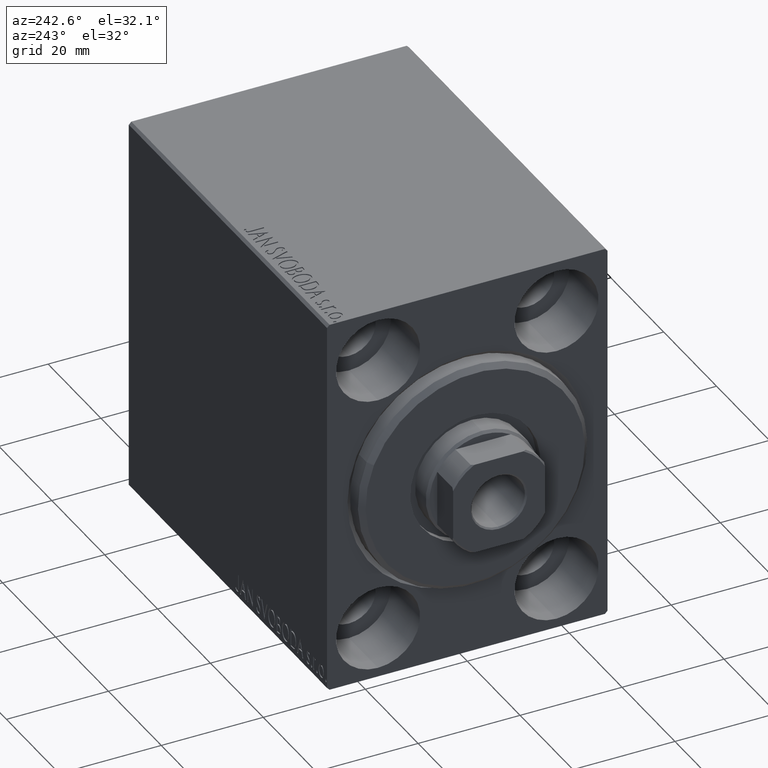
[diagram: clean part render]
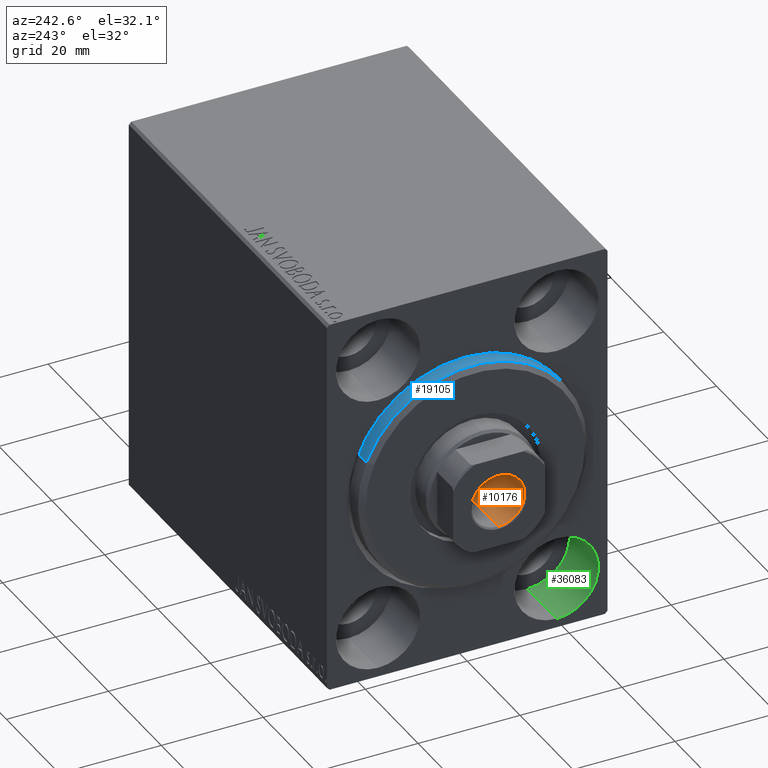
[diagram: same view with three faces highlighted in distinct colors, each labeled with its STEP entity id]
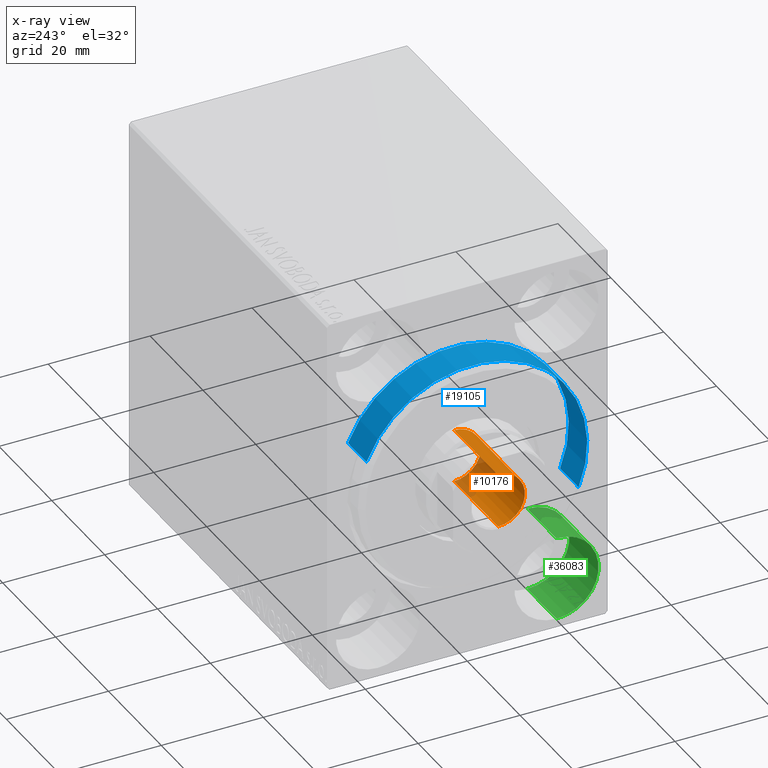
[diagram: x-ray of the same camera — body ghosted, the three highlighted faces saturated]
A machine part, auxiliary view with three faces highlighted in distinct colors.
The next image is the same camera in x-ray (body ghosted, the three faces saturated) — at least one of them is partly hidden behind the body in this view.
Their STEP definitions:

[orange] entity #10176 — the highlighted cylindrical surface (edge-blend (fillet) strip) has radius 5.25 mm, axis along (-1, 0, 0).
#694 = CIRCLE ( 'NONE', #25332, 5.249999999999996447 ) ;
#3334 = DIRECTION ( 'NONE',  ( 1.000000000000000000, 0.000000000000000000, 0.000000000000000000 ) ) ;
#4100 = EDGE_CURVE ( 'NONE', #34859, #17627, #36135, .T. ) ;
#4533 = FACE_OUTER_BOUND ( 'NONE', #13986, .T. ) ;
#5884 = AXIS2_PLACEMENT_3D ( 'NONE', #6429, #36396, #3334 ) ;
#6429 = CARTESIAN_POINT ( 'NONE',  ( 0.000000000000000000, 0.000000000000000000, 60.00000000000001421 ) ) ;
#7017 = CARTESIAN_POINT ( 'NONE',  ( 5.249999999999996447, 0.000000000000000000, 77.00000000000001421 ) ) ;
#8466 = ORIENTED_EDGE ( 'NONE', *, *, #4100, .F. ) ;
#9683 = LINE ( 'NONE', #7017, #30800 ) ;
#10176 = ADVANCED_FACE ( 'NONE', ( #4533 ), #20407, .F. ) ;
#13691 = CARTESIAN_POINT ( 'NONE',  ( -5.249999999999996447, 6.429395695523600208E-16, 76.70000000000000284 ) ) ;
#13807 = DIRECTION ( 'NONE',  ( -0.000000000000000000, -0.000000000000000000, 1.000000000000000000 ) ) ;
#13986 = EDGE_LOOP ( 'NONE', ( #8466, #37673, #31883, #18434 ) ) ;
#14102 = CARTESIAN_POINT ( 'NONE',  ( 0.000000000000000000, 0.000000000000000000, 76.70000000000000284 ) ) ;
#15848 = AXIS2_PLACEMENT_3D ( 'NONE', #17107, #13807, #27254 ) ;
#15951 = CARTESIAN_POINT ( 'NONE',  ( -5.249999999999996447, 6.429395695523600208E-16, 77.00000000000001421 ) ) ;
#17107 = CARTESIAN_POINT ( 'NONE',  ( 0.000000000000000000, 0.000000000000000000, 77.00000000000001421 ) ) ;
#17434 = EDGE_CURVE ( 'NONE', #17627, #22928, #9683, .T. ) ;
#17627 = VERTEX_POINT ( 'NONE', #38929 ) ;
#18434 = ORIENTED_EDGE ( 'NONE', *, *, #17434, .F. ) ;
#19678 = DIRECTION ( 'NONE',  ( 0.000000000000000000, 0.000000000000000000, 1.000000000000000000 ) ) ;
#20407 = CYLINDRICAL_SURFACE ( 'NONE', #15848, 5.249999999999996447 ) ;
#22928 = VERTEX_POINT ( 'NONE', #27607 ) ;
#23451 = EDGE_CURVE ( 'NONE', #34859, #23878, #30062, .T. ) ;
#23878 = VERTEX_POINT ( 'NONE', #13691 ) ;
#25332 = AXIS2_PLACEMENT_3D ( 'NONE', #14102, #19678, #40976 ) ;
#27254 = DIRECTION ( 'NONE',  ( 1.000000000000000000, 0.000000000000000000, 0.000000000000000000 ) ) ;
#27607 = CARTESIAN_POINT ( 'NONE',  ( 5.249999999999996447, 0.000000000000000000, 76.70000000000000284 ) ) ;
#29690 = EDGE_CURVE ( 'NONE', #23878, #22928, #694, .T. ) ;
#30062 = LINE ( 'NONE', #15951, #32234 ) ;
#30800 = VECTOR ( 'NONE', #36557, 1000.000000000000000 ) ;
#31883 = ORIENTED_EDGE ( 'NONE', *, *, #29690, .T. ) ;
#32234 = VECTOR ( 'NONE', #36440, 1000.000000000000000 ) ;
#32910 = CARTESIAN_POINT ( 'NONE',  ( -5.249999999999995559, 6.429395695523600208E-16, 60.00000000000001421 ) ) ;
#34859 = VERTEX_POINT ( 'NONE', #32910 ) ;
#36135 = CIRCLE ( 'NONE', #5884, 5.249999999999995559 ) ;
#36396 = DIRECTION ( 'NONE',  ( -0.000000000000000000, -0.000000000000000000, 1.000000000000000000 ) ) ;
#36440 = DIRECTION ( 'NONE',  ( -0.000000000000000000, -0.000000000000000000, 1.000000000000000000 ) ) ;
#36557 = DIRECTION ( 'NONE',  ( -0.000000000000000000, -0.000000000000000000, 1.000000000000000000 ) ) ;
#37673 = ORIENTED_EDGE ( 'NONE', *, *, #23451, .T. ) ;
#38929 = CARTESIAN_POINT ( 'NONE',  ( 5.249999999999995559, 0.000000000000000000, 60.00000000000001421 ) ) ;
#40976 = DIRECTION ( 'NONE',  ( 1.000000000000000000, 0.000000000000000000, 0.000000000000000000 ) ) ;

[blue] entity #19105 — the highlighted cylindrical surface (partial cylindrical patch) has radius 22.5 mm, axis along (1, 0, 0).
#1258 = DIRECTION ( 'NONE',  ( -1.000000000000000000, -0.000000000000000000, -0.000000000000000000 ) ) ;
#2498 = VERTEX_POINT ( 'NONE', #31910 ) ;
#3276 = DIRECTION ( 'NONE',  ( 0.000000000000000000, 0.000000000000000000, 1.000000000000000000 ) ) ;
#3499 = EDGE_CURVE ( 'NONE', #2498, #14376, #12198, .T. ) ;
#3638 = DIRECTION ( 'NONE',  ( -1.000000000000000000, -0.000000000000000000, -0.000000000000000000 ) ) ;
#5679 = VECTOR ( 'NONE', #3638, 1000.000000000000000 ) ;
#6952 = CARTESIAN_POINT ( 'NONE',  ( 3.000000000000000000, 2.755455298081545172E-15, -22.50000000000000355 ) ) ;
#7464 = LINE ( 'NONE', #31683, #42036 ) ;
#9438 = AXIS2_PLACEMENT_3D ( 'NONE', #34134, #40529, #17173 ) ;
#10260 = LINE ( 'NONE', #6952, #5679 ) ;
#11055 = VERTEX_POINT ( 'NONE', #29197 ) ;
#12198 = CIRCLE ( 'NONE', #37522, 22.50000000000000355 ) ;
#14376 = VERTEX_POINT ( 'NONE', #21541 ) ;
#17173 = DIRECTION ( 'NONE',  ( 0.000000000000000000, 0.000000000000000000, -1.000000000000000000 ) ) ;
#17537 = EDGE_CURVE ( 'NONE', #37765, #14376, #7464, .T. ) ;
#17767 = FACE_OUTER_BOUND ( 'NONE', #34479, .T. ) ;
#19105 = ADVANCED_FACE ( 'NONE', ( #17767 ), #28558, .T. ) ;
#21509 = DIRECTION ( 'NONE',  ( 0.000000000000000000, 0.000000000000000000, 1.000000000000000000 ) ) ;
#21541 = CARTESIAN_POINT ( 'NONE',  ( -5.000000000000000000, 0.000000000000000000, 22.50000000000000355 ) ) ;
#23981 = DIRECTION ( 'NONE',  ( -1.000000000000000000, 0.000000000000000000, 0.000000000000000000 ) ) ;
#24903 = CIRCLE ( 'NONE', #9438, 22.50000000000000355 ) ;
#28558 = CYLINDRICAL_SURFACE ( 'NONE', #42786, 22.50000000000000355 ) ;
#29197 = CARTESIAN_POINT ( 'NONE',  ( 1.999999999999999112, 2.755455298081545172E-15, -22.50000000000000355 ) ) ;
#30969 = EDGE_CURVE ( 'NONE', #11055, #2498, #10260, .T. ) ;
#31217 = DIRECTION ( 'NONE',  ( -1.000000000000000000, -0.000000000000000000, -0.000000000000000000 ) ) ;
#31683 = CARTESIAN_POINT ( 'NONE',  ( 3.000000000000000000, 0.000000000000000000, 22.50000000000000355 ) ) ;
#31861 = CARTESIAN_POINT ( 'NONE',  ( 3.000000000000000000, 0.000000000000000000, 0.000000000000000000 ) ) ;
#31910 = CARTESIAN_POINT ( 'NONE',  ( -5.000000000000000000, 2.755455298081545172E-15, -22.50000000000000355 ) ) ;
#33474 = CARTESIAN_POINT ( 'NONE',  ( -5.000000000000000000, 0.000000000000000000, 0.000000000000000000 ) ) ;
#34001 = CARTESIAN_POINT ( 'NONE',  ( 1.999999999999999112, 0.000000000000000000, 22.50000000000000355 ) ) ;
#34134 = CARTESIAN_POINT ( 'NONE',  ( 1.999999999999999112, 0.000000000000000000, 0.000000000000000000 ) ) ;
#34479 = EDGE_LOOP ( 'NONE', ( #34530, #40908, #42192, #40068 ) ) ;
#34530 = ORIENTED_EDGE ( 'NONE', *, *, #30969, .F. ) ;
#37522 = AXIS2_PLACEMENT_3D ( 'NONE', #33474, #23981, #3276 ) ;
#37765 = VERTEX_POINT ( 'NONE', #34001 ) ;
#40068 = ORIENTED_EDGE ( 'NONE', *, *, #3499, .F. ) ;
#40529 = DIRECTION ( 'NONE',  ( -1.000000000000000000, 0.000000000000000000, 0.000000000000000000 ) ) ;
#40908 = ORIENTED_EDGE ( 'NONE', *, *, #41633, .T. ) ;
#41633 = EDGE_CURVE ( 'NONE', #11055, #37765, #24903, .T. ) ;
#42036 = VECTOR ( 'NONE', #1258, 1000.000000000000000 ) ;
#42192 = ORIENTED_EDGE ( 'NONE', *, *, #17537, .T. ) ;
#42786 = AXIS2_PLACEMENT_3D ( 'NONE', #31861, #31217, #21509 ) ;

[green] entity #36083 — the highlighted cylindrical surface (partial cylindrical patch) has radius 8.25 mm, axis along (-1, -0, -0).
#1738 = CYLINDRICAL_SURFACE ( 'NONE', #11433, 8.250000000000000000 ) ;
#3268 = VECTOR ( 'NONE', #11127, 1000.000000000000000 ) ;
#4582 = LINE ( 'NONE', #41584, #26328 ) ;
#5579 = DIRECTION ( 'NONE',  ( 0.000000000000000000, 0.000000000000000000, 1.000000000000000000 ) ) ;
#5922 = CARTESIAN_POINT ( 'NONE',  ( 11.00000000000000000, -17.50000000000000355, -35.75000000000000711 ) ) ;
#6401 = EDGE_CURVE ( 'NONE', #20692, #21351, #4582, .T. ) ;
#8225 = ORIENTED_EDGE ( 'NONE', *, *, #20022, .F. ) ;
#9284 = CARTESIAN_POINT ( 'NONE',  ( 0.000000000000000000, -17.50000000000000355, -27.50000000000000355 ) ) ;
#9626 = VERTEX_POINT ( 'NONE', #37664 ) ;
#9663 = CIRCLE ( 'NONE', #16701, 8.250000000000000000 ) ;
#9753 = AXIS2_PLACEMENT_3D ( 'NONE', #25411, #25846, #5579 ) ;
#9874 = CARTESIAN_POINT ( 'NONE',  ( 0.000000000000000000, -17.50000000000000355, -19.25000000000000355 ) ) ;
#11127 = DIRECTION ( 'NONE',  ( -1.000000000000000000, -0.000000000000000000, -0.000000000000000000 ) ) ;
#11433 = AXIS2_PLACEMENT_3D ( 'NONE', #35029, #22022, #24467 ) ;
#13808 = EDGE_CURVE ( 'NONE', #14156, #9626, #21479, .T. ) ;
#14156 = VERTEX_POINT ( 'NONE', #5922 ) ;
#14438 = CARTESIAN_POINT ( 'NONE',  ( 11.00000000000000000, -17.50000000000000355, -35.75000000000000711 ) ) ;
#16109 = DIRECTION ( 'NONE',  ( -1.000000000000000000, 0.000000000000000000, 0.000000000000000000 ) ) ;
#16179 = EDGE_CURVE ( 'NONE', #9626, #21351, #9663, .T. ) ;
#16701 = AXIS2_PLACEMENT_3D ( 'NONE', #9284, #16109, #19190 ) ;
#19190 = DIRECTION ( 'NONE',  ( 0.000000000000000000, 0.000000000000000000, 1.000000000000000000 ) ) ;
#20022 = EDGE_CURVE ( 'NONE', #14156, #20692, #22422, .T. ) ;
#20692 = VERTEX_POINT ( 'NONE', #31648 ) ;
#21351 = VERTEX_POINT ( 'NONE', #9874 ) ;
#21479 = LINE ( 'NONE', #14438, #3268 ) ;
#22022 = DIRECTION ( 'NONE',  ( -1.000000000000000000, -0.000000000000000000, -0.000000000000000000 ) ) ;
#22422 = CIRCLE ( 'NONE', #9753, 8.250000000000000000 ) ;
#24467 = DIRECTION ( 'NONE',  ( 0.000000000000000000, 0.000000000000000000, 1.000000000000000000 ) ) ;
#25411 = CARTESIAN_POINT ( 'NONE',  ( 11.00000000000000000, -17.50000000000000355, -27.50000000000000355 ) ) ;
#25496 = DIRECTION ( 'NONE',  ( -1.000000000000000000, -0.000000000000000000, -0.000000000000000000 ) ) ;
#25846 = DIRECTION ( 'NONE',  ( -1.000000000000000000, 0.000000000000000000, 0.000000000000000000 ) ) ;
#26328 = VECTOR ( 'NONE', #25496, 1000.000000000000000 ) ;
#26622 = ORIENTED_EDGE ( 'NONE', *, *, #6401, .F. ) ;
#27337 = ORIENTED_EDGE ( 'NONE', *, *, #13808, .T. ) ;
#27757 = ORIENTED_EDGE ( 'NONE', *, *, #16179, .T. ) ;
#31648 = CARTESIAN_POINT ( 'NONE',  ( 11.00000000000000000, -17.50000000000000355, -19.25000000000000355 ) ) ;
#33290 = EDGE_LOOP ( 'NONE', ( #8225, #27337, #27757, #26622 ) ) ;
#34599 = FACE_OUTER_BOUND ( 'NONE', #33290, .T. ) ;
#35029 = CARTESIAN_POINT ( 'NONE',  ( 11.00000000000000000, -17.50000000000000355, -27.50000000000000355 ) ) ;
#36083 = ADVANCED_FACE ( 'NONE', ( #34599 ), #1738, .F. ) ;
#37664 = CARTESIAN_POINT ( 'NONE',  ( 0.000000000000000000, -17.50000000000000355, -35.75000000000000711 ) ) ;
#41584 = CARTESIAN_POINT ( 'NONE',  ( 11.00000000000000000, -17.50000000000000355, -19.25000000000000355 ) ) ;